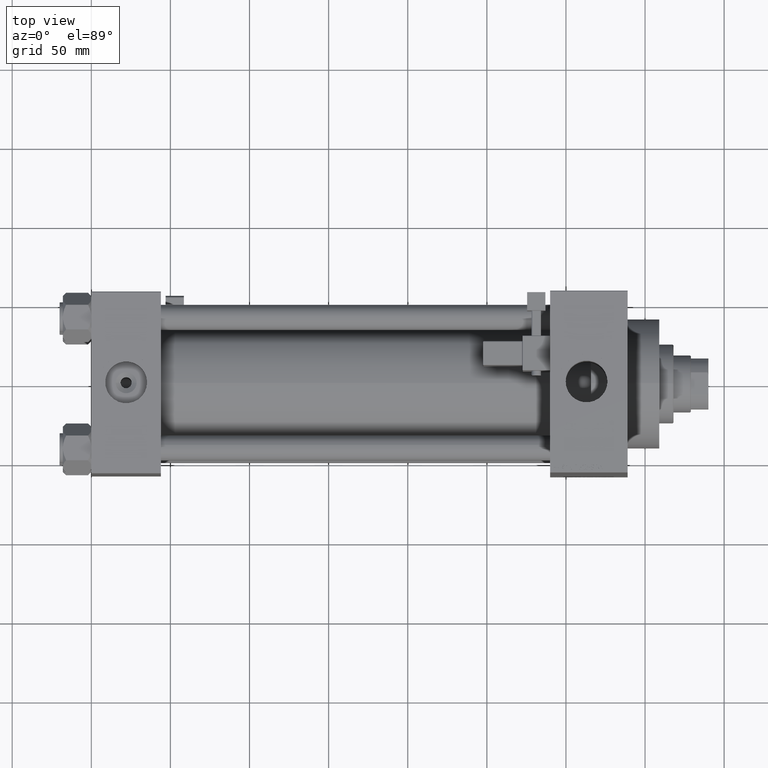
[diagram: clean part render]
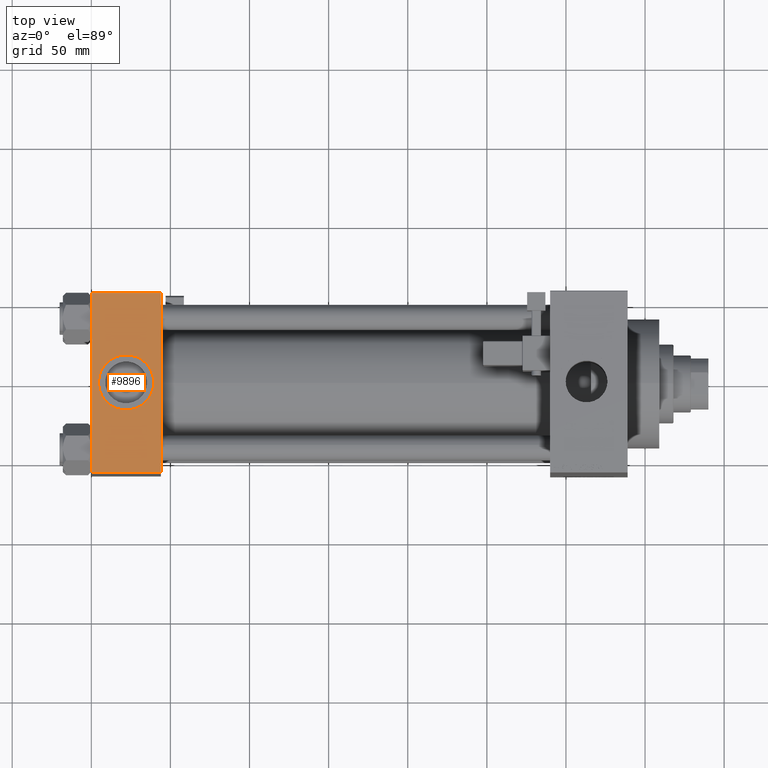
[diagram: same view with one face highlighted and labeled with its STEP entity id]
A machine part, top view. The second image highlights one B-rep face of the part: STEP entity #9896.
In plain terms, the highlighted planar face has unit normal (0, 0, -1).
Its self-contained STEP definition (entity closure, byte-faithful):
#38 = PLANE ( 'NONE',  #18129 ) ;
#995 = VERTEX_POINT ( 'NONE', #28441 ) ;
#1040 = VERTEX_POINT ( 'NONE', #18085 ) ;
#2287 = CARTESIAN_POINT ( 'NONE',  ( 0.000000000000000000, 57.00000000000000711, 57.50000000000000711 ) ) ;
#3014 = EDGE_CURVE ( 'NONE', #18987, #45127, #31519, .T. ) ;
#3255 = EDGE_CURVE ( 'NONE', #18987, #20824, #49607, .T. ) ;
#3975 = CARTESIAN_POINT ( 'NONE',  ( 0.000000000000000000, 57.49999999999999289, 57.50000000000000711 ) ) ;
#4589 = ORIENTED_EDGE ( 'NONE', *, *, #3014, .T. ) ;
#4664 = CARTESIAN_POINT ( 'NONE',  ( 22.00000000000000000, -8.673617379884035472E-15, 57.50000000000000000 ) ) ;
#4910 = LINE ( 'NONE', #47258, #18137 ) ;
#4985 = CARTESIAN_POINT ( 'NONE',  ( 22.00000000000000000, -8.673617379884035472E-15, 57.50000000000000000 ) ) ;
#7125 = DIRECTION ( 'NONE',  ( 0.000000000000000000, 1.000000000000000000, 1.206764157201257045E-16 ) ) ;
#7439 = EDGE_CURVE ( 'NONE', #995, #1040, #44528, .T. ) ;
#9896 = ADVANCED_FACE ( 'NONE', ( #38890, #26309 ), #38, .F. ) ;
#10115 = ORIENTED_EDGE ( 'NONE', *, *, #7439, .F. ) ;
#10516 = EDGE_LOOP ( 'NONE', ( #23263, #46425, #46509, #4589 ) ) ;
#11392 = CARTESIAN_POINT ( 'NONE',  ( 44.00000000000000000, 57.49999999999999289, 57.50000000000000711 ) ) ;
#12218 = VECTOR ( 'NONE', #31222, 1000.000000000000000 ) ;
#14480 = ORIENTED_EDGE ( 'NONE', *, *, #48749, .F. ) ;
#15676 = EDGE_CURVE ( 'NONE', #45127, #33807, #45828, .T. ) ;
#16301 = VECTOR ( 'NONE', #16870, 1000.000000000000000 ) ;
#16870 = DIRECTION ( 'NONE',  ( -1.000000000000000000, 0.000000000000000000, 0.000000000000000000 ) ) ;
#18085 = CARTESIAN_POINT ( 'NONE',  ( 39.50000000000000000, -8.673617379884035472E-15, 57.50000000000000000 ) ) ;
#18129 = AXIS2_PLACEMENT_3D ( 'NONE', #11392, #27054, #7125 ) ;
#18137 = VECTOR ( 'NONE', #35941, 1000.000000000000000 ) ;
#18987 = VERTEX_POINT ( 'NONE', #21795 ) ;
#19926 = CARTESIAN_POINT ( 'NONE',  ( 0.000000000000000000, 57.00000000000000711, 57.50000000000000711 ) ) ;
#20382 = DIRECTION ( 'NONE',  ( 1.000000000000000000, 0.000000000000000000, 0.000000000000000000 ) ) ;
#20824 = VERTEX_POINT ( 'NONE', #26671 ) ;
#21795 = CARTESIAN_POINT ( 'NONE',  ( 44.00000000000000000, 57.00000000000000711, 57.50000000000000711 ) ) ;
#23263 = ORIENTED_EDGE ( 'NONE', *, *, #15676, .T. ) ;
#24341 = DIRECTION ( 'NONE',  ( 1.000000000000000000, 0.000000000000000000, 0.000000000000000000 ) ) ;
#25101 = CARTESIAN_POINT ( 'NONE',  ( 0.000000000000000000, -57.00000000000003553, 57.49999999999999289 ) ) ;
#25635 = EDGE_CURVE ( 'NONE', #33807, #20824, #4910, .T. ) ;
#26309 = FACE_OUTER_BOUND ( 'NONE', #10516, .T. ) ;
#26473 = AXIS2_PLACEMENT_3D ( 'NONE', #4985, #46831, #20382 ) ;
#26671 = CARTESIAN_POINT ( 'NONE',  ( 44.00000000000000000, -57.00000000000003553, 57.49999999999999289 ) ) ;
#27054 = DIRECTION ( 'NONE',  ( 0.000000000000000000, 1.206764157201257045E-16, -1.000000000000000000 ) ) ;
#28374 = VECTOR ( 'NONE', #30473, 1000.000000000000000 ) ;
#28441 = CARTESIAN_POINT ( 'NONE',  ( 4.499999999999997335, -6.530485481376167224E-15, 57.50000000000000000 ) ) ;
#30473 = DIRECTION ( 'NONE',  ( 0.000000000000000000, -1.000000000000000000, -1.206764157201257045E-16 ) ) ;
#31222 = DIRECTION ( 'NONE',  ( 0.000000000000000000, -1.000000000000000000, -1.206764157201257045E-16 ) ) ;
#31519 = LINE ( 'NONE', #19926, #16301 ) ;
#33807 = VERTEX_POINT ( 'NONE', #25101 ) ;
#34883 = AXIS2_PLACEMENT_3D ( 'NONE', #4664, #43242, #24341 ) ;
#35941 = DIRECTION ( 'NONE',  ( 1.000000000000000000, 0.000000000000000000, 0.000000000000000000 ) ) ;
#37790 = CARTESIAN_POINT ( 'NONE',  ( 44.00000000000000000, 57.49999999999999289, 57.50000000000000711 ) ) ;
#38890 = FACE_BOUND ( 'NONE', #44027, .T. ) ;
#41747 = CIRCLE ( 'NONE', #26473, 17.50000000000000000 ) ;
#43242 = DIRECTION ( 'NONE',  ( 0.000000000000000000, 0.000000000000000000, 1.000000000000000000 ) ) ;
#44027 = EDGE_LOOP ( 'NONE', ( #14480, #10115 ) ) ;
#44528 = CIRCLE ( 'NONE', #34883, 17.50000000000000000 ) ;
#45127 = VERTEX_POINT ( 'NONE', #2287 ) ;
#45828 = LINE ( 'NONE', #3975, #12218 ) ;
#46425 = ORIENTED_EDGE ( 'NONE', *, *, #25635, .T. ) ;
#46509 = ORIENTED_EDGE ( 'NONE', *, *, #3255, .F. ) ;
#46831 = DIRECTION ( 'NONE',  ( 0.000000000000000000, 0.000000000000000000, 1.000000000000000000 ) ) ;
#47258 = CARTESIAN_POINT ( 'NONE',  ( 44.00000000000000000, -57.00000000000003553, 57.49999999999999289 ) ) ;
#48749 = EDGE_CURVE ( 'NONE', #1040, #995, #41747, .T. ) ;
#49607 = LINE ( 'NONE', #37790, #28374 ) ;